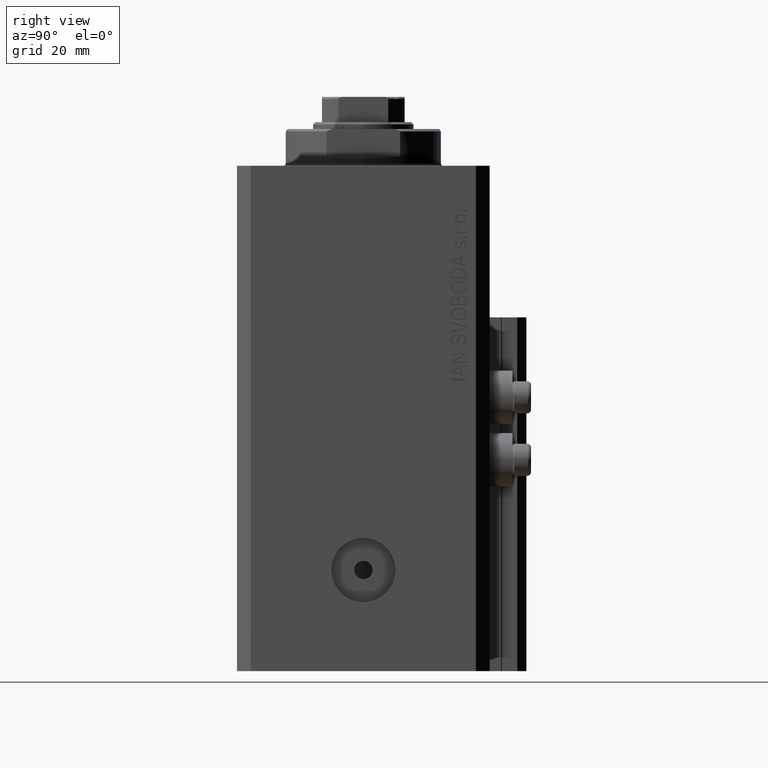
[diagram: clean part render]
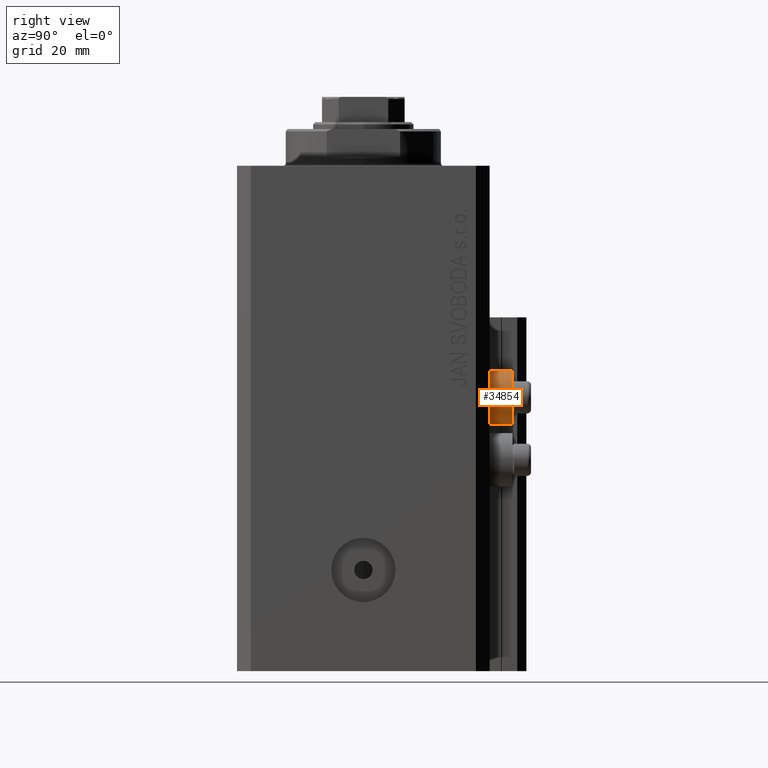
[diagram: same view with one face highlighted and labeled with its STEP entity id]
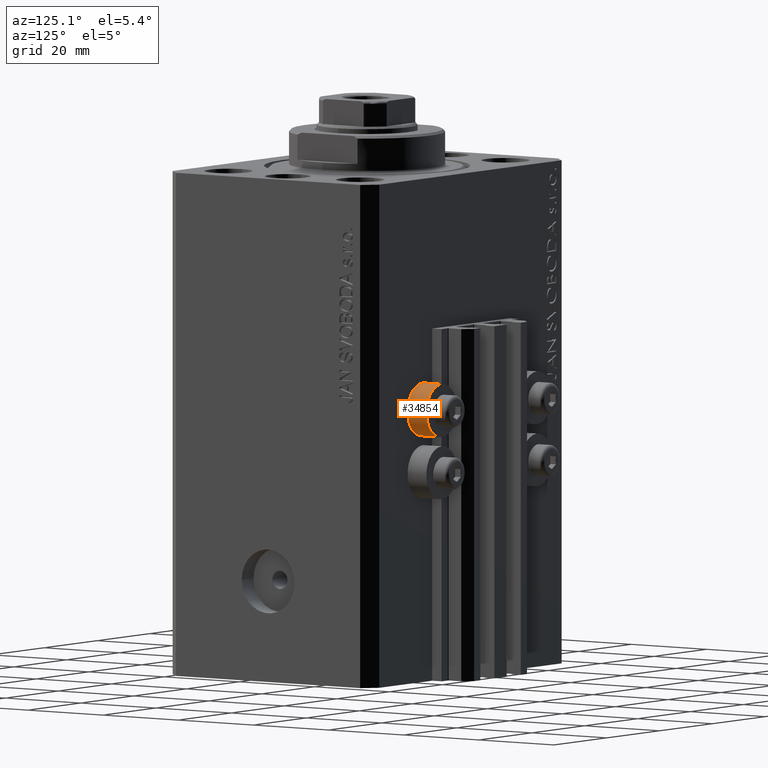
[diagram: same view with one face highlighted and labeled with its STEP entity id]
A machine part, right view. The second image highlights one B-rep face of the part: STEP entity #34854.
A second angle (auxiliary view) of the same face is appended — the face is thin or edge-on in the first view.
In plain terms, the highlighted cylindrical surface (edge-blend (fillet) strip) has radius 5.8 mm, axis along (0, 1, 0).
Its self-contained STEP definition (entity closure, byte-faithful):
#2464 = CARTESIAN_POINT ( 'NONE',  ( 18.00000000000000355, 27.50000000000000000, -50.39999999999999858 ) ) ;
#4499 = DIRECTION ( 'NONE',  ( 0.000000000000000000, 0.000000000000000000, 1.000000000000000000 ) ) ;
#5176 = CIRCLE ( 'NONE', #15184, 5.799999999999999822 ) ;
#6068 = EDGE_CURVE ( 'NONE', #40627, #13343, #10928, .T. ) ;
#9886 = VECTOR ( 'NONE', #29752, 1000.000000000000000 ) ;
#10928 = LINE ( 'NONE', #28846, #22529 ) ;
#10977 = DIRECTION ( 'NONE',  ( 0.000000000000000000, 0.000000000000000000, 1.000000000000000000 ) ) ;
#13343 = VERTEX_POINT ( 'NONE', #20680 ) ;
#13402 = ORIENTED_EDGE ( 'NONE', *, *, #36664, .F. ) ;
#14378 = DIRECTION ( 'NONE',  ( 0.000000000000000000, 0.000000000000000000, 1.000000000000000000 ) ) ;
#15184 = AXIS2_PLACEMENT_3D ( 'NONE', #34100, #29578, #4499 ) ;
#17887 = FACE_OUTER_BOUND ( 'NONE', #25757, .T. ) ;
#18077 = DIRECTION ( 'NONE',  ( 0.000000000000000000, 1.000000000000000000, 0.000000000000000000 ) ) ;
#18545 = AXIS2_PLACEMENT_3D ( 'NONE', #2464, #47118, #14378 ) ;
#19344 = VERTEX_POINT ( 'NONE', #40124 ) ;
#20680 = CARTESIAN_POINT ( 'NONE',  ( 18.00000000000000355, 32.49999999996100541, -44.60000000000000142 ) ) ;
#21055 = CARTESIAN_POINT ( 'NONE',  ( 18.00000000000000355, 32.49999999996100541, -56.20000000000000284 ) ) ;
#21365 = EDGE_CURVE ( 'NONE', #46350, #13343, #5176, .T. ) ;
#22100 = LINE ( 'NONE', #45250, #9886 ) ;
#22529 = VECTOR ( 'NONE', #18077, 1000.000000000000000 ) ;
#25063 = CYLINDRICAL_SURFACE ( 'NONE', #32969, 5.799999999999999822 ) ;
#25757 = EDGE_LOOP ( 'NONE', ( #13402, #32257, #44947, #27854 ) ) ;
#26843 = CIRCLE ( 'NONE', #18545, 5.799999999999999822 ) ;
#27536 = EDGE_CURVE ( 'NONE', #19344, #46350, #22100, .T. ) ;
#27854 = ORIENTED_EDGE ( 'NONE', *, *, #6068, .F. ) ;
#28846 = CARTESIAN_POINT ( 'NONE',  ( 18.00000000000000355, 32.49999999996100541, -44.60000000000000142 ) ) ;
#29133 = CARTESIAN_POINT ( 'NONE',  ( 18.00000000000000355, 32.49999999996100541, -50.39999999999999858 ) ) ;
#29578 = DIRECTION ( 'NONE',  ( -0.000000000000000000, -1.000000000000000000, -0.000000000000000000 ) ) ;
#29752 = DIRECTION ( 'NONE',  ( 0.000000000000000000, 1.000000000000000000, 0.000000000000000000 ) ) ;
#31717 = CARTESIAN_POINT ( 'NONE',  ( 18.00000000000000355, 27.50000000000000000, -44.60000000000000142 ) ) ;
#32257 = ORIENTED_EDGE ( 'NONE', *, *, #27536, .T. ) ;
#32969 = AXIS2_PLACEMENT_3D ( 'NONE', #29133, #46804, #10977 ) ;
#34100 = CARTESIAN_POINT ( 'NONE',  ( 18.00000000000000355, 32.49999999996100541, -50.39999999999999858 ) ) ;
#34854 = ADVANCED_FACE ( 'NONE', ( #17887 ), #25063, .T. ) ;
#36664 = EDGE_CURVE ( 'NONE', #19344, #40627, #26843, .T. ) ;
#40124 = CARTESIAN_POINT ( 'NONE',  ( 18.00000000000000355, 27.50000000000000000, -56.20000000000000284 ) ) ;
#40627 = VERTEX_POINT ( 'NONE', #31717 ) ;
#44947 = ORIENTED_EDGE ( 'NONE', *, *, #21365, .T. ) ;
#45250 = CARTESIAN_POINT ( 'NONE',  ( 18.00000000000000355, 32.49999999996100541, -56.20000000000000284 ) ) ;
#46350 = VERTEX_POINT ( 'NONE', #21055 ) ;
#46804 = DIRECTION ( 'NONE',  ( 0.000000000000000000, 1.000000000000000000, 0.000000000000000000 ) ) ;
#47118 = DIRECTION ( 'NONE',  ( -0.000000000000000000, -1.000000000000000000, -0.000000000000000000 ) ) ;